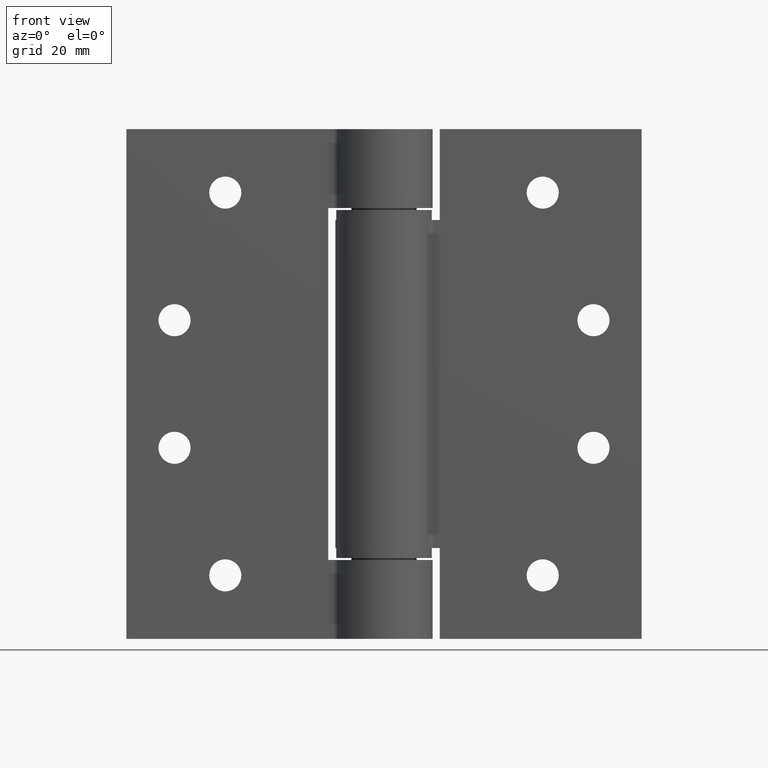
[diagram: clean part render]
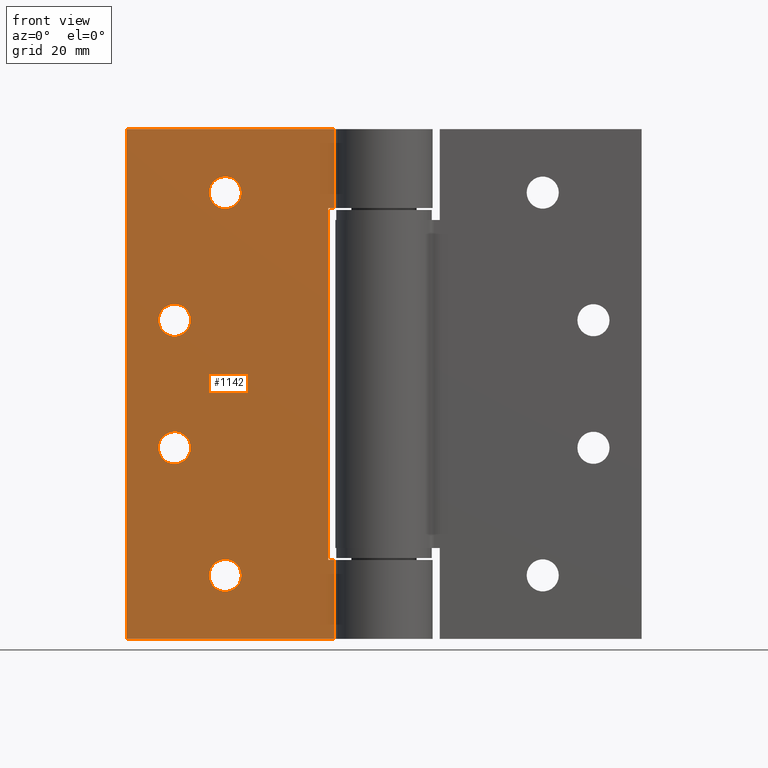
[diagram: same view with one face highlighted and labeled with its STEP entity id]
A machine part, front view. The second image highlights one B-rep face of the part: STEP entity #1142.
In plain terms, the highlighted planar face has unit normal (0, -1, 0).
Its self-contained STEP definition (entity closure, byte-faithful):
#103=FACE_BOUND('',#349,.T.);
#104=FACE_BOUND('',#350,.T.);
#105=FACE_BOUND('',#351,.T.);
#106=FACE_BOUND('',#352,.T.);
#184=CIRCLE('',#1248,3.2);
#186=CIRCLE('',#1252,3.2);
#188=CIRCLE('',#1256,3.2);
#190=CIRCLE('',#1260,3.2);
#252=FACE_OUTER_BOUND('',#348,.T.);
#348=EDGE_LOOP('',(#974,#975,#976,#977,#978,#979,#980,#981));
#349=EDGE_LOOP('',(#982));
#350=EDGE_LOOP('',(#983));
#351=EDGE_LOOP('',(#984));
#352=EDGE_LOOP('',(#985));
#415=LINE('',#1794,#492);
#419=LINE('',#1810,#496);
#422=LINE('',#1816,#499);
#430=LINE('',#1848,#507);
#441=LINE('',#1908,#518);
#443=LINE('',#1913,#520);
#444=LINE('',#1915,#521);
#445=LINE('',#1916,#522);
#492=VECTOR('',#1434,1.17578718486952);
#496=VECTOR('',#1448,70.1);
#499=VECTOR('',#1453,1.17578718486952);
#507=VECTOR('',#1481,15.7);
#518=VECTOR('',#1554,41.3757871848695);
#520=VECTOR('',#1560,101.5);
#521=VECTOR('',#1563,15.7);
#522=VECTOR('',#1564,41.3757871848695);
#577=VERTEX_POINT('',#1792);
#578=VERTEX_POINT('',#1793);
#585=VERTEX_POINT('',#1809);
#587=VERTEX_POINT('',#1815);
#601=VERTEX_POINT('',#1847);
#610=VERTEX_POINT('',#1882);
#612=VERTEX_POINT('',#1888);
#614=VERTEX_POINT('',#1894);
#616=VERTEX_POINT('',#1900);
#618=VERTEX_POINT('',#1905);
#619=VERTEX_POINT('',#1907);
#620=VERTEX_POINT('',#1911);
#694=EDGE_CURVE('',#577,#578,#415,.T.);
#702=EDGE_CURVE('',#585,#577,#419,.T.);
#705=EDGE_CURVE('',#587,#585,#422,.T.);
#721=EDGE_CURVE('',#587,#601,#430,.T.);
#738=EDGE_CURVE('',#610,#610,#184,.T.);
#740=EDGE_CURVE('',#612,#612,#186,.T.);
#742=EDGE_CURVE('',#614,#614,#188,.T.);
#744=EDGE_CURVE('',#616,#616,#190,.T.);
#747=EDGE_CURVE('',#618,#619,#441,.T.);
#750=EDGE_CURVE('',#618,#620,#443,.T.);
#751=EDGE_CURVE('',#619,#578,#444,.T.);
#752=EDGE_CURVE('',#601,#620,#445,.T.);
#974=ORIENTED_EDGE('',*,*,#694,.T.);
#975=ORIENTED_EDGE('',*,*,#751,.F.);
#976=ORIENTED_EDGE('',*,*,#747,.F.);
#977=ORIENTED_EDGE('',*,*,#750,.T.);
#978=ORIENTED_EDGE('',*,*,#752,.F.);
#979=ORIENTED_EDGE('',*,*,#721,.F.);
#980=ORIENTED_EDGE('',*,*,#705,.T.);
#981=ORIENTED_EDGE('',*,*,#702,.T.);
#982=ORIENTED_EDGE('',*,*,#738,.T.);
#983=ORIENTED_EDGE('',*,*,#740,.T.);
#984=ORIENTED_EDGE('',*,*,#742,.T.);
#985=ORIENTED_EDGE('',*,*,#744,.T.);
#1084=PLANE('',#1265);
#1142=ADVANCED_FACE('',(#252,#103,#104,#105,#106),#1084,.T.);
#1248=AXIS2_PLACEMENT_3D('',#1883,#1523,#1524);
#1252=AXIS2_PLACEMENT_3D('',#1889,#1531,#1532);
#1256=AXIS2_PLACEMENT_3D('',#1895,#1539,#1540);
#1260=AXIS2_PLACEMENT_3D('',#1901,#1547,#1548);
#1265=AXIS2_PLACEMENT_3D('',#1914,#1561,#1562);
#1434=DIRECTION('',(-1.,0.,0.));
#1448=DIRECTION('',(0.,0.,-1.));
#1453=DIRECTION('',(1.,0.,1.65868246999572E-16));
#1481=DIRECTION('',(0.,0.,1.));
#1523=DIRECTION('center_axis',(0.,1.,0.));
#1524=DIRECTION('ref_axis',(1.,0.,0.));
#1531=DIRECTION('center_axis',(0.,1.,0.));
#1532=DIRECTION('ref_axis',(1.,0.,0.));
#1539=DIRECTION('center_axis',(0.,1.,0.));
#1540=DIRECTION('ref_axis',(1.,0.,0.));
#1547=DIRECTION('center_axis',(0.,1.,0.));
#1548=DIRECTION('ref_axis',(1.,0.,0.));
#1554=DIRECTION('',(-1.,0.,0.));
#1560=DIRECTION('',(0.,0.,1.));
#1561=DIRECTION('center_axis',(0.,-1.,0.));
#1562=DIRECTION('ref_axis',(1.,0.,0.));
#1563=DIRECTION('',(0.,0.,1.));
#1564=DIRECTION('',(1.,0.,0.));
#1792=CARTESIAN_POINT('',(11.1,-3.,-35.05));
#1793=CARTESIAN_POINT('',(9.92421281513048,-3.,-35.05));
#1794=CARTESIAN_POINT('',(10.5121064075652,-3.,-35.05));
#1809=CARTESIAN_POINT('',(11.1,-3.,35.05));
#1810=CARTESIAN_POINT('',(11.1,-3.,17.525));
#1815=CARTESIAN_POINT('',(9.92421281513048,-3.,35.05));
#1816=CARTESIAN_POINT('',(-2.87469962322404,-3.,35.05));
#1847=CARTESIAN_POINT('',(9.92421281513048,-3.,50.75));
#1848=CARTESIAN_POINT('',(9.92421281513048,-3.,0.));
#1882=CARTESIAN_POINT('',(28.4,-3.00000000000001,38.1));
#1883=CARTESIAN_POINT('Origin',(31.6,-3.00000000000001,38.1));
#1888=CARTESIAN_POINT('',(28.4,-3.00000000000001,-38.1));
#1889=CARTESIAN_POINT('Origin',(31.6,-3.00000000000001,-38.1));
#1894=CARTESIAN_POINT('',(38.5,-3.00000000000001,-12.7));
#1895=CARTESIAN_POINT('Origin',(41.7,-3.00000000000001,-12.7));
#1900=CARTESIAN_POINT('',(38.5,-3.00000000000001,12.7));
#1901=CARTESIAN_POINT('Origin',(41.7,-3.00000000000001,12.7));
#1905=CARTESIAN_POINT('',(51.3,-3.,-50.75));
#1907=CARTESIAN_POINT('',(9.92421281513048,-3.,-50.75));
#1908=CARTESIAN_POINT('',(9.92421281513048,-3.,-50.75));
#1911=CARTESIAN_POINT('',(51.3,-3.,50.75));
#1913=CARTESIAN_POINT('',(51.3,-3.,0.));
#1914=CARTESIAN_POINT('Origin',(9.92421281513048,-3.,0.));
#1915=CARTESIAN_POINT('',(9.92421281513048,-3.,0.));
#1916=CARTESIAN_POINT('',(9.92421281513048,-3.,50.75));